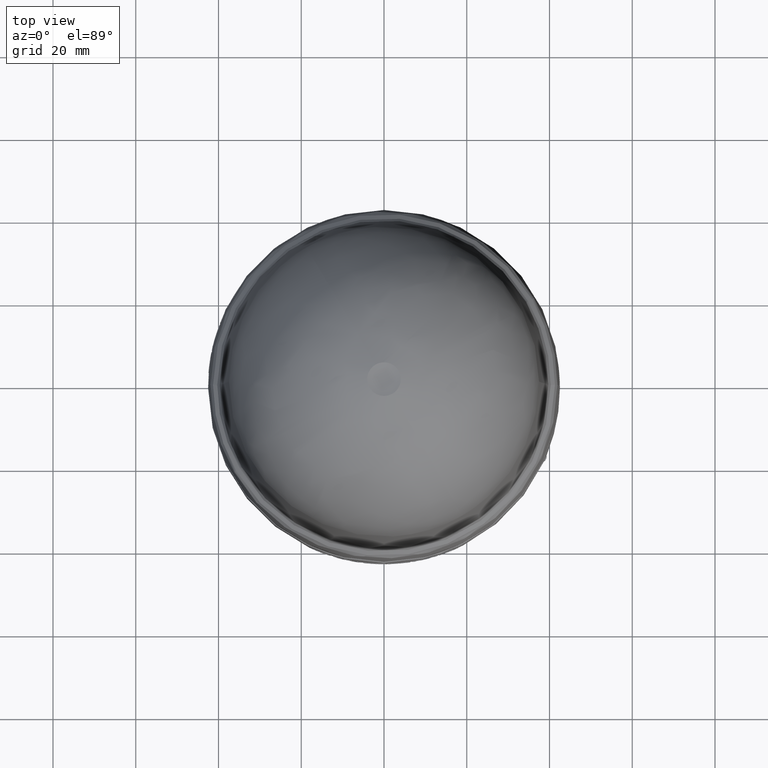
[diagram: clean part render]
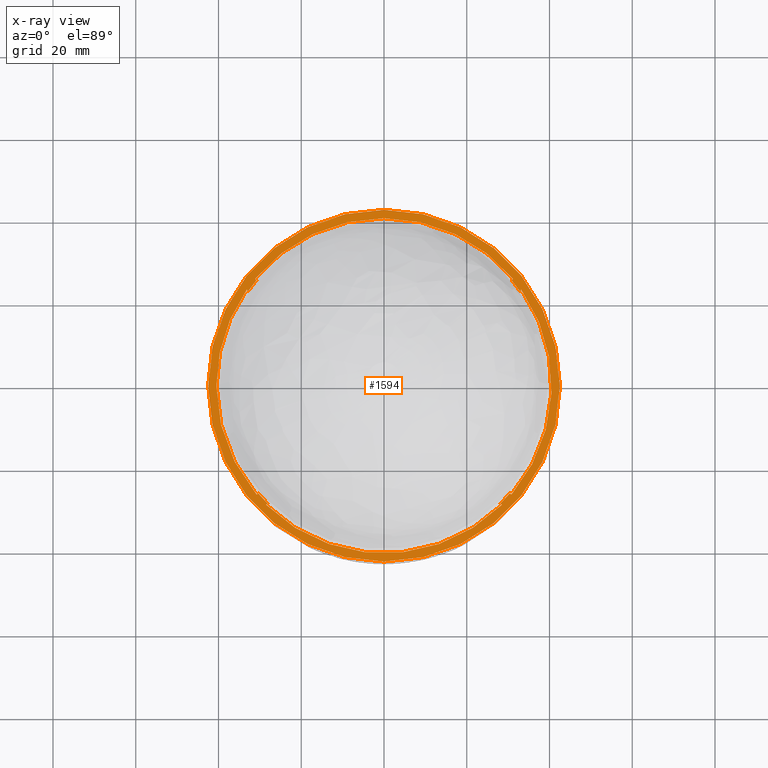
[diagram: x-ray — body ghosted, one internal face saturated and labeled with its STEP entity id]
A machine part, top view, then the same camera in x-ray: the body is ghosted and one INTERNAL B-rep face — a face not visible from any outside direction — is saturated and labeled: STEP entity #1594.
In plain terms, the highlighted planar face has unit normal (0, 0, 1).
Its self-contained STEP definition (entity closure, byte-faithful):
#100 = CIRCLE ( 'NONE', #14353, 1.594488188976378007 ) ;
#158 = EDGE_CURVE ( 'NONE', #1484, #6791, #7521, .T. ) ;
#176 = ORIENTED_EDGE ( 'NONE', *, *, #257, .F. ) ;
#257 = EDGE_CURVE ( 'NONE', #3877, #10578, #10168, .T. ) ;
#359 = VERTEX_POINT ( 'NONE', #13994 ) ;
#391 = CARTESIAN_POINT ( 'NONE',  ( 1.226403149878897647, 1.018983757845165483, 1.448818897637795367 ) ) ;
#632 = DIRECTION ( 'NONE',  ( -1.000000000000000000, 0.0000000000000000000, 0.0000000000000000000 ) ) ;
#732 = EDGE_LOOP ( 'NONE', ( #1422, #10472 ) ) ;
#741 = ORIENTED_EDGE ( 'NONE', *, *, #7996, .F. ) ;
#772 = DIRECTION ( 'NONE',  ( -0.5735764363510699182, 0.8191520442889751452, 0.0000000000000000000 ) ) ;
#781 = ORIENTED_EDGE ( 'NONE', *, *, #9701, .F. ) ;
#881 = VERTEX_POINT ( 'NONE', #6074 ) ;
#1207 = CARTESIAN_POINT ( 'NONE',  ( 0.0000000000000000000, 0.0000000000000000000, 1.448818897637792480 ) ) ;
#1208 = EDGE_CURVE ( 'NONE', #9521, #10749, #2721, .T. ) ;
#1302 = DIRECTION ( 'NONE',  ( 0.0000000000000000000, 0.0000000000000000000, -1.000000000000000000 ) ) ;
#1353 = CIRCLE ( 'NONE', #10857, 1.673228346456693272 ) ;
#1422 = ORIENTED_EDGE ( 'NONE', *, *, #8383, .F. ) ;
#1463 = EDGE_CURVE ( 'NONE', #2243, #3122, #6230, .T. ) ;
#1484 = VERTEX_POINT ( 'NONE', #7922 ) ;
#1554 = DIRECTION ( 'NONE',  ( -1.000000000000000000, 0.0000000000000000000, 0.0000000000000000000 ) ) ;
#1594 = ADVANCED_FACE ( 'NONE', ( #7143, #9640 ), #3678, .F. ) ;
#1832 = EDGE_CURVE ( 'NONE', #6791, #13829, #6344, .T. ) ;
#1833 = CARTESIAN_POINT ( 'NONE',  ( -1.673228346456693272, 0.0000000000000000000, 1.448818897637792480 ) ) ;
#1924 = CARTESIAN_POINT ( 'NONE',  ( 1.104823003925410108, -1.122217042290461819, 1.448818897637795367 ) ) ;
#2037 = EDGE_CURVE ( 'NONE', #881, #9521, #11795, .T. ) ;
#2080 = CARTESIAN_POINT ( 'NONE',  ( -1.104823003925412772, -1.122217042290460043, 1.448818897637795367 ) ) ;
#2187 = CARTESIAN_POINT ( 'NONE',  ( 0.0000000000000000000, 0.0000000000000000000, 1.448818897637795367 ) ) ;
#2243 = VERTEX_POINT ( 'NONE', #11151 ) ;
#2361 = VECTOR ( 'NONE', #772, 39.37007874015748854 ) ;
#2674 = LINE ( 'NONE', #10986, #5123 ) ;
#2721 = CIRCLE ( 'NONE', #13974, 1.574803149606299302 ) ;
#2762 = VERTEX_POINT ( 'NONE', #10423 ) ;
#3080 = DIRECTION ( 'NONE',  ( -1.000000000000000000, 0.0000000000000000000, 0.0000000000000000000 ) ) ;
#3111 = CIRCLE ( 'NONE', #6899, 1.574803149606299302 ) ;
#3122 = VERTEX_POINT ( 'NONE', #3561 ) ;
#3466 = ORIENTED_EDGE ( 'NONE', *, *, #2037, .F. ) ;
#3544 = ORIENTED_EDGE ( 'NONE', *, *, #1208, .F. ) ;
#3545 = LINE ( 'NONE', #8259, #15356 ) ;
#3561 = CARTESIAN_POINT ( 'NONE',  ( -1.123847080742011562, -1.131088114999370120, 1.448818897637797143 ) ) ;
#3594 = AXIS2_PLACEMENT_3D ( 'NONE', #11951, #1302, #13354 ) ;
#3664 = CARTESIAN_POINT ( 'NONE',  ( -1.226403149878900756, 1.018983757845177918, 1.448818897637795367 ) ) ;
#3677 = DIRECTION ( 'NONE',  ( -1.000000000000000000, 0.0000000000000000000, 0.0000000000000000000 ) ) ;
#3678 = PLANE ( 'NONE',  #14460 ) ;
#3854 = DIRECTION ( 'NONE',  ( -0.9063077870366752498, -0.4226182617406450404, 0.0000000000000000000 ) ) ;
#3863 = ORIENTED_EDGE ( 'NONE', *, *, #14941, .F. ) ;
#3871 = AXIS2_PLACEMENT_3D ( 'NONE', #13548, #14491, #7686 ) ;
#3877 = VERTEX_POINT ( 'NONE', #13777 ) ;
#3934 = VERTEX_POINT ( 'NONE', #7002 ) ;
#3981 = CARTESIAN_POINT ( 'NONE',  ( 1.294094552724904812, 0.8973986007442001922, 1.448818897637795367 ) ) ;
#4309 = CARTESIAN_POINT ( 'NONE',  ( 0.0000000000000000000, 0.0000000000000000000, 1.448818897637799141 ) ) ;
#4351 = VERTEX_POINT ( 'NONE', #14000 ) ;
#4588 = CARTESIAN_POINT ( 'NONE',  ( 1.213226703380429150, -1.034636917469023754, 1.448818897637795367 ) ) ;
#4872 = DIRECTION ( 'NONE',  ( 0.5735764363510849062, -0.8191520442889645981, 0.0000000000000000000 ) ) ;
#4994 = CARTESIAN_POINT ( 'NONE',  ( 0.0000000000000000000, 0.0000000000000000000, 1.448818897637795367 ) ) ;
#5002 = EDGE_CURVE ( 'NONE', #10578, #1484, #14581, .T. ) ;
#5034 = LINE ( 'NONE', #8416, #10461 ) ;
#5123 = VECTOR ( 'NONE', #3854, 39.37007874015748854 ) ;
#5150 = CIRCLE ( 'NONE', #13891, 1.574803149606299302 ) ;
#5322 = EDGE_CURVE ( 'NONE', #359, #12813, #7890, .T. ) ;
#5361 = CIRCLE ( 'NONE', #3871, 1.594488188976378229 ) ;
#5377 = CARTESIAN_POINT ( 'NONE',  ( 0.0000000000000000000, 0.0000000000000000000, 1.448818897637795367 ) ) ;
#5605 = CARTESIAN_POINT ( 'NONE',  ( 1.294094552724905700, 0.8973986007442008583, 1.448818897637795367 ) ) ;
#5792 = AXIS2_PLACEMENT_3D ( 'NONE', #2187, #12915, #5871 ) ;
#5871 = DIRECTION ( 'NONE',  ( -1.000000000000000000, 0.0000000000000000000, 0.0000000000000000000 ) ) ;
#5934 = EDGE_CURVE ( 'NONE', #10749, #2243, #14051, .T. ) ;
#5954 = EDGE_CURVE ( 'NONE', #13829, #8720, #14132, .T. ) ;
#6039 = ORIENTED_EDGE ( 'NONE', *, *, #9143, .F. ) ;
#6074 = CARTESIAN_POINT ( 'NONE',  ( 1.213226703380432481, -1.034636917469025752, 1.448818897637795367 ) ) ;
#6136 = DIRECTION ( 'NONE',  ( -1.000000000000000000, 0.0000000000000000000, 0.0000000000000000000 ) ) ;
#6230 = CIRCLE ( 'NONE', #8977, 1.594488188976378007 ) ;
#6344 = CIRCLE ( 'NONE', #3594, 1.574803149606299302 ) ;
#6411 = DIRECTION ( 'NONE',  ( 0.0000000000000000000, 0.0000000000000000000, -1.000000000000000000 ) ) ;
#6579 = CARTESIAN_POINT ( 'NONE',  ( 0.0000000000000000000, 0.0000000000000000000, 1.448818897637792480 ) ) ;
#6624 = EDGE_CURVE ( 'NONE', #12922, #4351, #5150, .T. ) ;
#6703 = DIRECTION ( 'NONE',  ( -0.9063077870367196587, 0.4226182617405496722, 0.0000000000000000000 ) ) ;
#6791 = VERTEX_POINT ( 'NONE', #14077 ) ;
#6872 = DIRECTION ( 'NONE',  ( 0.5735764363509930908, 0.8191520442890288800, 0.0000000000000000000 ) ) ;
#6899 = AXIS2_PLACEMENT_3D ( 'NONE', #4994, #14536, #13291 ) ;
#7002 = CARTESIAN_POINT ( 'NONE',  ( -1.594488188976378007, 0.0000000000000000000, 1.448818897637795367 ) ) ;
#7143 = FACE_BOUND ( 'NONE', #9512, .T. ) ;
#7393 = ORIENTED_EDGE ( 'NONE', *, *, #7835, .F. ) ;
#7448 = CARTESIAN_POINT ( 'NONE',  ( 0.0000000000000000000, 0.0000000000000000000, 1.448818897637795367 ) ) ;
#7521 = LINE ( 'NONE', #391, #11117 ) ;
#7686 = DIRECTION ( 'NONE',  ( -1.000000000000000000, 0.0000000000000000000, 0.0000000000000000000 ) ) ;
#7792 = CARTESIAN_POINT ( 'NONE',  ( 0.0000000000000000000, 0.0000000000000000000, 1.448818897637795367 ) ) ;
#7835 = EDGE_CURVE ( 'NONE', #11649, #3877, #3111, .T. ) ;
#7890 = CIRCLE ( 'NONE', #9894, 1.673228346456693272 ) ;
#7922 = CARTESIAN_POINT ( 'NONE',  ( 1.226403149878900756, 1.018983757845169702, 1.448818897637795367 ) ) ;
#7996 = EDGE_CURVE ( 'NONE', #11557, #3934, #100, .T. ) ;
#8195 = ORIENTED_EDGE ( 'NONE', *, *, #1463, .F. ) ;
#8259 = CARTESIAN_POINT ( 'NONE',  ( -1.306119975403870148, 0.9145726841733898826, 1.448818897637795367 ) ) ;
#8383 = EDGE_CURVE ( 'NONE', #12813, #359, #1353, .T. ) ;
#8389 = CARTESIAN_POINT ( 'NONE',  ( 1.194707601944480446, -1.026001318647295157, 1.448818897637795367 ) ) ;
#8416 = CARTESIAN_POINT ( 'NONE',  ( -1.123847080742011784, -1.131088114999370120, 1.448818897637795367 ) ) ;
#8719 = ORIENTED_EDGE ( 'NONE', *, *, #5954, .F. ) ;
#8720 = VERTEX_POINT ( 'NONE', #12064 ) ;
#8977 = AXIS2_PLACEMENT_3D ( 'NONE', #4309, #9093, #13858 ) ;
#8995 = CARTESIAN_POINT ( 'NONE',  ( -1.214693171424204854, 1.002260175456118230, 1.448818897637795367 ) ) ;
#9013 = CIRCLE ( 'NONE', #5792, 1.594488188976378007 ) ;
#9015 = EDGE_CURVE ( 'NONE', #2762, #11649, #3545, .T. ) ;
#9093 = DIRECTION ( 'NONE',  ( 0.0000000000000000000, 0.0000000000000000000, -1.000000000000000000 ) ) ;
#9143 = EDGE_CURVE ( 'NONE', #4351, #11557, #2674, .T. ) ;
#9252 = EDGE_CURVE ( 'NONE', #8720, #881, #5361, .T. ) ;
#9367 = CARTESIAN_POINT ( 'NONE',  ( 1.104823003925409441, -1.122217042290460709, 1.448818897637795367 ) ) ;
#9393 = VECTOR ( 'NONE', #6872, 39.37007874015748854 ) ;
#9512 = EDGE_LOOP ( 'NONE', ( #12458, #9539, #176, #7393, #14001, #781, #741, #6039, #10386, #3863, #8195, #15377, #3544, #3466, #14186, #8719, #11640 ) ) ;
#9521 = VERTEX_POINT ( 'NONE', #8389 ) ;
#9539 = ORIENTED_EDGE ( 'NONE', *, *, #5002, .F. ) ;
#9598 = VECTOR ( 'NONE', #6703, 39.37007874015748854 ) ;
#9640 = FACE_OUTER_BOUND ( 'NONE', #732, .T. ) ;
#9701 = EDGE_CURVE ( 'NONE', #3934, #2762, #9013, .T. ) ;
#9789 = DIRECTION ( 'NONE',  ( 0.0000000000000000000, 0.0000000000000000000, -1.000000000000000000 ) ) ;
#9894 = AXIS2_PLACEMENT_3D ( 'NONE', #6579, #11355, #632 ) ;
#10168 = LINE ( 'NONE', #8995, #2361 ) ;
#10377 = DIRECTION ( 'NONE',  ( 0.0000000000000000000, 0.0000000000000000000, -1.000000000000000000 ) ) ;
#10386 = ORIENTED_EDGE ( 'NONE', *, *, #6624, .F. ) ;
#10423 = CARTESIAN_POINT ( 'NONE',  ( -1.306119975403874145, 0.9145726841733959889, 1.448818897637795367 ) ) ;
#10461 = VECTOR ( 'NONE', #11930, 39.37007874015748143 ) ;
#10472 = ORIENTED_EDGE ( 'NONE', *, *, #5322, .F. ) ;
#10578 = VERTEX_POINT ( 'NONE', #3664 ) ;
#10682 = DIRECTION ( 'NONE',  ( 0.0000000000000000000, 0.0000000000000000000, -1.000000000000000000 ) ) ;
#10749 = VERTEX_POINT ( 'NONE', #1924 ) ;
#10842 = AXIS2_PLACEMENT_3D ( 'NONE', #7792, #10377, #3080 ) ;
#10857 = AXIS2_PLACEMENT_3D ( 'NONE', #1207, #14197, #11791 ) ;
#10888 = DIRECTION ( 'NONE',  ( 1.000000000000000000, 0.0000000000000000000, -0.0000000000000000000 ) ) ;
#10986 = CARTESIAN_POINT ( 'NONE',  ( -1.194707601944484443, -1.026001318647291383, 1.448818897637795367 ) ) ;
#11117 = VECTOR ( 'NONE', #14697, 39.37007874015748854 ) ;
#11151 = CARTESIAN_POINT ( 'NONE',  ( 1.123847080742009563, -1.131088114999372340, 1.448818897637797143 ) ) ;
#11355 = DIRECTION ( 'NONE',  ( -0.0000000000000000000, -0.0000000000000000000, 1.000000000000000000 ) ) ;
#11557 = VERTEX_POINT ( 'NONE', #12350 ) ;
#11640 = ORIENTED_EDGE ( 'NONE', *, *, #1832, .F. ) ;
#11649 = VERTEX_POINT ( 'NONE', #13669 ) ;
#11791 = DIRECTION ( 'NONE',  ( -1.000000000000000000, 0.0000000000000000000, 0.0000000000000000000 ) ) ;
#11795 = LINE ( 'NONE', #4588, #9598 ) ;
#11930 = DIRECTION ( 'NONE',  ( 0.9063077870366392785, 0.4226182617407223119, 0.0000000000000000000 ) ) ;
#11951 = CARTESIAN_POINT ( 'NONE',  ( 0.0000000000000000000, 0.0000000000000000000, 1.448818897637795367 ) ) ;
#12054 = DIRECTION ( 'NONE',  ( 0.0000000000000000000, 0.0000000000000000000, 1.000000000000000000 ) ) ;
#12064 = CARTESIAN_POINT ( 'NONE',  ( 1.306119975403877032, 0.9145726841734047596, 1.448818897637795367 ) ) ;
#12350 = CARTESIAN_POINT ( 'NONE',  ( -1.213226703380438476, -1.034636917469023754, 1.448818897637795367 ) ) ;
#12458 = ORIENTED_EDGE ( 'NONE', *, *, #158, .F. ) ;
#12813 = VERTEX_POINT ( 'NONE', #1833 ) ;
#12889 = DIRECTION ( 'NONE',  ( 0.9063077870366006428, -0.4226182617408049680, 0.0000000000000000000 ) ) ;
#12915 = DIRECTION ( 'NONE',  ( 0.0000000000000000000, 0.0000000000000000000, -1.000000000000000000 ) ) ;
#12922 = VERTEX_POINT ( 'NONE', #2080 ) ;
#13229 = CARTESIAN_POINT ( 'NONE',  ( 0.0000000000000000000, 0.0000000000000000000, 1.448818897637795367 ) ) ;
#13291 = DIRECTION ( 'NONE',  ( -1.000000000000000000, 0.0000000000000000000, 0.0000000000000000000 ) ) ;
#13325 = CARTESIAN_POINT ( 'NONE',  ( 0.0000000000000000000, 0.0000000000000000000, 1.448818897637795367 ) ) ;
#13354 = DIRECTION ( 'NONE',  ( -1.000000000000000000, 0.0000000000000000000, 0.0000000000000000000 ) ) ;
#13379 = VECTOR ( 'NONE', #12889, 39.37007874015748143 ) ;
#13548 = CARTESIAN_POINT ( 'NONE',  ( 0.0000000000000000000, 0.0000000000000000000, 1.448818897637795367 ) ) ;
#13669 = CARTESIAN_POINT ( 'NONE',  ( -1.294094552724906366, 0.8973986007441979718, 1.448818897637795367 ) ) ;
#13777 = CARTESIAN_POINT ( 'NONE',  ( -1.214693171424204410, 1.002260175456118008, 1.448818897637795367 ) ) ;
#13829 = VERTEX_POINT ( 'NONE', #3981 ) ;
#13858 = DIRECTION ( 'NONE',  ( -1.000000000000000000, 0.0000000000000000000, 0.0000000000000000000 ) ) ;
#13891 = AXIS2_PLACEMENT_3D ( 'NONE', #7448, #9789, #3677 ) ;
#13974 = AXIS2_PLACEMENT_3D ( 'NONE', #13325, #10682, #6136 ) ;
#13994 = CARTESIAN_POINT ( 'NONE',  ( 1.673228346456693272, 2.049113738730808245E-16, 1.448818897637792480 ) ) ;
#14000 = CARTESIAN_POINT ( 'NONE',  ( -1.194707601944484221, -1.026001318647291161, 1.448818897637795367 ) ) ;
#14001 = ORIENTED_EDGE ( 'NONE', *, *, #9015, .F. ) ;
#14051 = LINE ( 'NONE', #9367, #13379 ) ;
#14077 = CARTESIAN_POINT ( 'NONE',  ( 1.214693171424209739, 1.002260175456111568, 1.448818897637795367 ) ) ;
#14132 = LINE ( 'NONE', #5605, #9393 ) ;
#14186 = ORIENTED_EDGE ( 'NONE', *, *, #9252, .F. ) ;
#14197 = DIRECTION ( 'NONE',  ( -0.0000000000000000000, -0.0000000000000000000, 1.000000000000000000 ) ) ;
#14353 = AXIS2_PLACEMENT_3D ( 'NONE', #5377, #6411, #1554 ) ;
#14460 = AXIS2_PLACEMENT_3D ( 'NONE', #13229, #12054, #10888 ) ;
#14491 = DIRECTION ( 'NONE',  ( 0.0000000000000000000, 0.0000000000000000000, -1.000000000000000000 ) ) ;
#14536 = DIRECTION ( 'NONE',  ( 0.0000000000000000000, 0.0000000000000000000, -1.000000000000000000 ) ) ;
#14581 = CIRCLE ( 'NONE', #10842, 1.594488188976378007 ) ;
#14697 = DIRECTION ( 'NONE',  ( -0.5735764363510913455, -0.8191520442889601572, 0.0000000000000000000 ) ) ;
#14941 = EDGE_CURVE ( 'NONE', #3122, #12922, #5034, .T. ) ;
#15356 = VECTOR ( 'NONE', #4872, 39.37007874015748143 ) ;
#15377 = ORIENTED_EDGE ( 'NONE', *, *, #5934, .F. ) ;